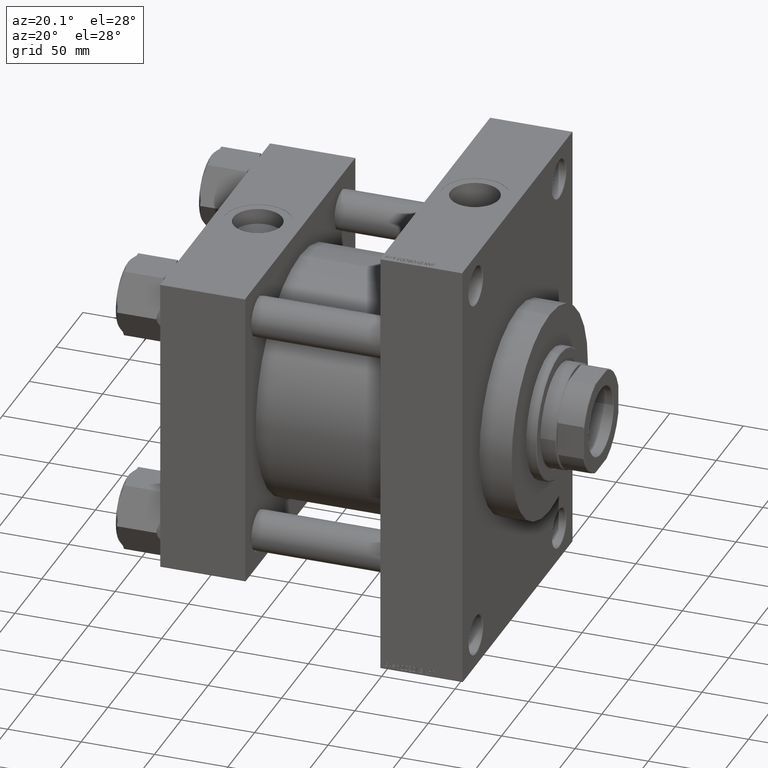
[diagram: clean part render]
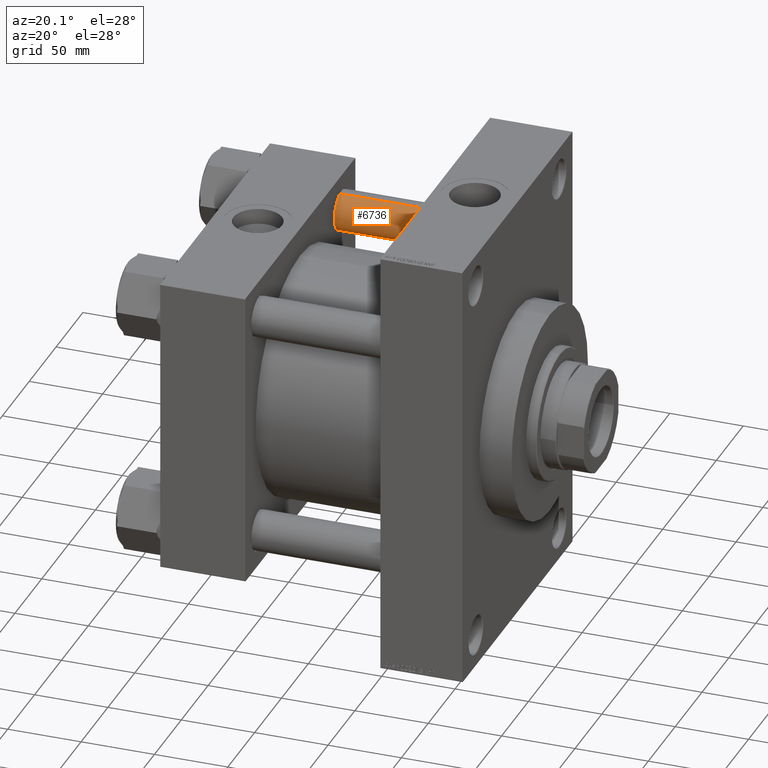
[diagram: same view with one face highlighted and labeled with its STEP entity id]
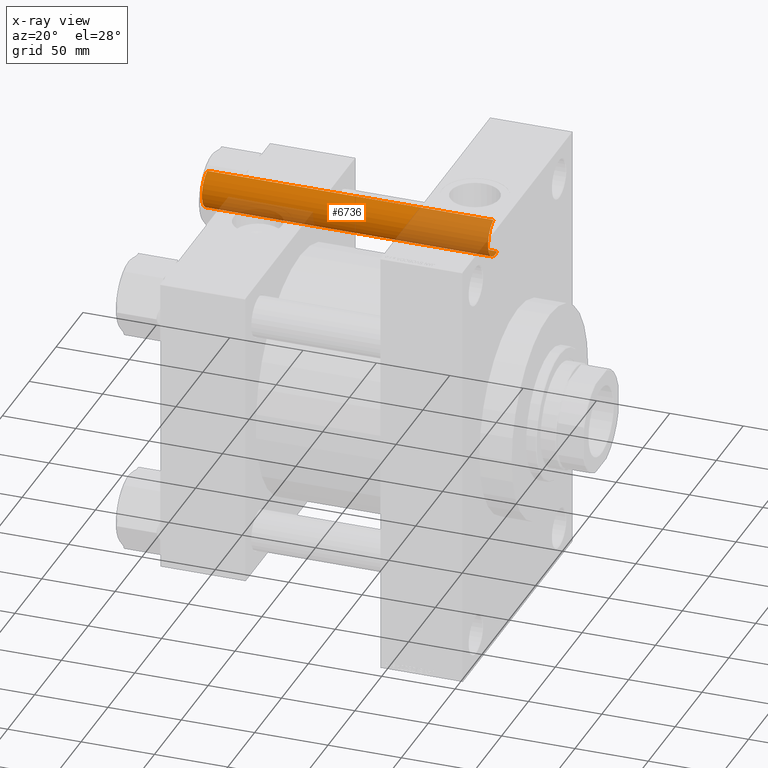
[diagram: x-ray of the same camera — body ghosted, the highlighted face saturated]
A machine part, auxiliary view. The second image highlights one B-rep face of the part: STEP entity #6736.
The next image is the same camera in x-ray: the body ghosted, the highlighted face saturated — about 41% of this face is hidden behind the body in this view.
In plain terms, the highlighted cylindrical surface (edge-blend (fillet) strip) has radius 13.5 mm, axis along (-1, -0, 0).
Its self-contained STEP definition (entity closure, byte-faithful):
#441 = FACE_OUTER_BOUND ( 'NONE', #6588, .T. ) ;
#934 = CARTESIAN_POINT ( 'NONE',  ( 13.50000000000000000, 1.653273178848926867E-15, 0.4999999999999726885 ) ) ;
#2893 = LINE ( 'NONE', #40485, #32069 ) ;
#3676 = ORIENTED_EDGE ( 'NONE', *, *, #15053, .T. ) ;
#6051 = VERTEX_POINT ( 'NONE', #16528 ) ;
#6588 = EDGE_LOOP ( 'NONE', ( #24082, #3676, #15665, #29551 ) ) ;
#6736 = ADVANCED_FACE ( 'NONE', ( #441 ), #22628, .T. ) ;
#7501 = EDGE_CURVE ( 'NONE', #16822, #45362, #41232, .T. ) ;
#11737 = VERTEX_POINT ( 'NONE', #27445 ) ;
#13113 = DIRECTION ( 'NONE',  ( 1.000000000000000000, 0.000000000000000000, 0.000000000000000000 ) ) ;
#13494 = CARTESIAN_POINT ( 'NONE',  ( 0.000000000000000000, 0.000000000000000000, 0.4999999999999726885 ) ) ;
#15053 = EDGE_CURVE ( 'NONE', #11737, #6051, #34658, .T. ) ;
#15144 = DIRECTION ( 'NONE',  ( -0.000000000000000000, -0.000000000000000000, -1.000000000000000000 ) ) ;
#15633 = CARTESIAN_POINT ( 'NONE',  ( 0.000000000000000000, 0.000000000000000000, 196.0000000000000000 ) ) ;
#15665 = ORIENTED_EDGE ( 'NONE', *, *, #35235, .T. ) ;
#16528 = CARTESIAN_POINT ( 'NONE',  ( -13.50000000000000000, 0.000000000000000000, 195.5000000000000284 ) ) ;
#16822 = VERTEX_POINT ( 'NONE', #32713 ) ;
#17367 = DIRECTION ( 'NONE',  ( 1.000000000000000000, 0.000000000000000000, 0.000000000000000000 ) ) ;
#18136 = AXIS2_PLACEMENT_3D ( 'NONE', #13494, #27274, #17367 ) ;
#20256 = LINE ( 'NONE', #39673, #32429 ) ;
#21927 = DIRECTION ( 'NONE',  ( -0.000000000000000000, -0.000000000000000000, -1.000000000000000000 ) ) ;
#22628 = CYLINDRICAL_SURFACE ( 'NONE', #32061, 13.50000000000000000 ) ;
#23375 = EDGE_CURVE ( 'NONE', #11737, #45362, #2893, .T. ) ;
#24082 = ORIENTED_EDGE ( 'NONE', *, *, #23375, .F. ) ;
#27274 = DIRECTION ( 'NONE',  ( -0.000000000000000000, -0.000000000000000000, 1.000000000000000000 ) ) ;
#27445 = CARTESIAN_POINT ( 'NONE',  ( 13.50000000000000000, 1.653273178848926867E-15, 195.5000000000000284 ) ) ;
#28837 = DIRECTION ( 'NONE',  ( -0.000000000000000000, -0.000000000000000000, -1.000000000000000000 ) ) ;
#29551 = ORIENTED_EDGE ( 'NONE', *, *, #7501, .T. ) ;
#32061 = AXIS2_PLACEMENT_3D ( 'NONE', #15633, #15144, #36862 ) ;
#32069 = VECTOR ( 'NONE', #21927, 1000.000000000000000 ) ;
#32429 = VECTOR ( 'NONE', #28837, 1000.000000000000000 ) ;
#32713 = CARTESIAN_POINT ( 'NONE',  ( -13.50000000000000000, 0.000000000000000000, 0.4999999999999726885 ) ) ;
#34658 = CIRCLE ( 'NONE', #47712, 13.50000000000000000 ) ;
#35235 = EDGE_CURVE ( 'NONE', #6051, #16822, #20256, .T. ) ;
#36862 = DIRECTION ( 'NONE',  ( -1.000000000000000000, 0.000000000000000000, 0.000000000000000000 ) ) ;
#39673 = CARTESIAN_POINT ( 'NONE',  ( -13.50000000000000000, 0.000000000000000000, 196.0000000000000000 ) ) ;
#40485 = CARTESIAN_POINT ( 'NONE',  ( 13.50000000000000000, 1.653273178848926867E-15, 196.0000000000000000 ) ) ;
#41232 = CIRCLE ( 'NONE', #18136, 13.50000000000000000 ) ;
#42765 = DIRECTION ( 'NONE',  ( 0.000000000000000000, 0.000000000000000000, -1.000000000000000000 ) ) ;
#45362 = VERTEX_POINT ( 'NONE', #934 ) ;
#46159 = CARTESIAN_POINT ( 'NONE',  ( 0.000000000000000000, 0.000000000000000000, 195.5000000000000284 ) ) ;
#47712 = AXIS2_PLACEMENT_3D ( 'NONE', #46159, #42765, #13113 ) ;